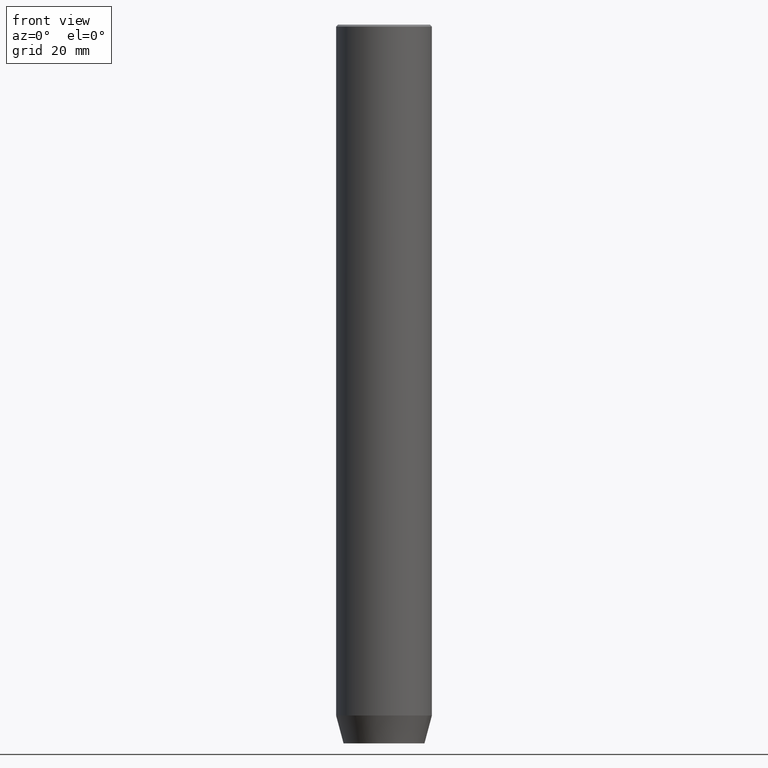
[diagram: clean part render]
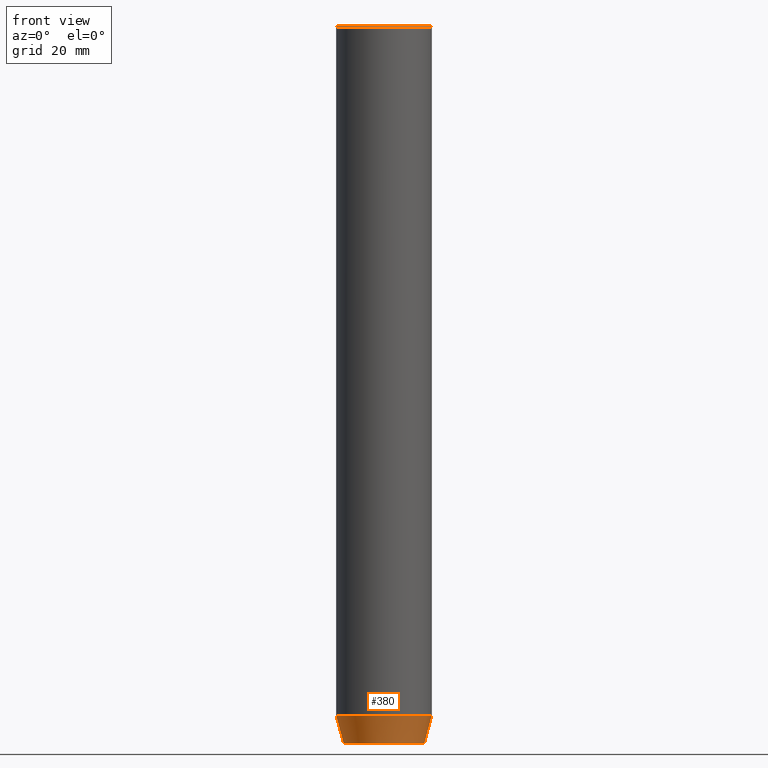
[diagram: same view with one face highlighted and labeled with its STEP entity id]
A machine part, front view. The second image highlights one B-rep face of the part: STEP entity #380.
In plain terms, the highlighted conical surface has half-angle 15 deg.
Its self-contained STEP definition (entity closure, byte-faithful):
#4 = EDGE_CURVE ( 'NONE', #230, #500, #580, .T. ) ;
#20 = VECTOR ( 'NONE', #286, 1000.000000000000000 ) ;
#22 = EDGE_CURVE ( 'NONE', #500, #363, #296, .T. ) ;
#32 = DIRECTION ( 'NONE',  ( -0.2588190451025213501, 3.169619151431772337E-17, 0.9659258262890680902 ) ) ;
#37 = CARTESIAN_POINT ( 'NONE',  ( -12.00000000000000000, 1.469576158976823947E-15, -173.0000000000000000 ) ) ;
#57 = CONICAL_SURFACE ( 'NONE', #338, 12.00000000000000000, 0.2617993877991500740 ) ;
#62 = ORIENTED_EDGE ( 'NONE', *, *, #208, .T. ) ;
#74 = DIRECTION ( 'NONE',  ( 1.000000000000000000, 0.000000000000000000, 0.000000000000000000 ) ) ;
#85 = CARTESIAN_POINT ( 'NONE',  ( -12.00000000000000000, 1.469576158976823947E-15, -173.0000000000000000 ) ) ;
#92 = EDGE_LOOP ( 'NONE', ( #180, #62, #539, #388 ) ) ;
#120 = DIRECTION ( 'NONE',  ( -0.000000000000000000, -0.000000000000000000, 1.000000000000000000 ) ) ;
#180 = ORIENTED_EDGE ( 'NONE', *, *, #4, .F. ) ;
#193 = AXIS2_PLACEMENT_3D ( 'NONE', #492, #120, #74 ) ;
#208 = EDGE_CURVE ( 'NONE', #230, #410, #498, .T. ) ;
#209 = CARTESIAN_POINT ( 'NONE',  ( -10.12435565298213547, 1.354726066681111050E-15, -180.0000000000000000 ) ) ;
#230 = VERTEX_POINT ( 'NONE', #209 ) ;
#239 = FACE_OUTER_BOUND ( 'NONE', #92, .T. ) ;
#251 = EDGE_CURVE ( 'NONE', #410, #363, #562, .T. ) ;
#277 = CARTESIAN_POINT ( 'NONE',  ( 12.00000000000000000, 0.000000000000000000, -173.0000000000000000 ) ) ;
#282 = CARTESIAN_POINT ( 'NONE',  ( 12.00000000000000000, 0.000000000000000000, -173.0000000000000000 ) ) ;
#285 = DIRECTION ( 'NONE',  ( 1.000000000000000000, 0.000000000000000000, 0.000000000000000000 ) ) ;
#286 = DIRECTION ( 'NONE',  ( 0.2588190451025213501, 0.000000000000000000, 0.9659258262890680902 ) ) ;
#296 = CIRCLE ( 'NONE', #193, 12.00000000000000000 ) ;
#338 = AXIS2_PLACEMENT_3D ( 'NONE', #423, #341, #521 ) ;
#341 = DIRECTION ( 'NONE',  ( -0.000000000000000000, -0.000000000000000000, 1.000000000000000000 ) ) ;
#360 = AXIS2_PLACEMENT_3D ( 'NONE', #367, #493, #285 ) ;
#363 = VERTEX_POINT ( 'NONE', #282 ) ;
#367 = CARTESIAN_POINT ( 'NONE',  ( 0.000000000000000000, 0.000000000000000000, -180.0000000000000000 ) ) ;
#380 = ADVANCED_FACE ( 'NONE', ( #239 ), #57, .T. ) ;
#388 = ORIENTED_EDGE ( 'NONE', *, *, #22, .F. ) ;
#410 = VERTEX_POINT ( 'NONE', #527 ) ;
#423 = CARTESIAN_POINT ( 'NONE',  ( 0.000000000000000000, 0.000000000000000000, -173.0000000000000000 ) ) ;
#492 = CARTESIAN_POINT ( 'NONE',  ( 0.000000000000000000, 0.000000000000000000, -173.0000000000000000 ) ) ;
#493 = DIRECTION ( 'NONE',  ( -0.000000000000000000, -0.000000000000000000, 1.000000000000000000 ) ) ;
#498 = CIRCLE ( 'NONE', #360, 10.12435565298213547 ) ;
#500 = VERTEX_POINT ( 'NONE', #37 ) ;
#521 = DIRECTION ( 'NONE',  ( 1.000000000000000000, 0.000000000000000000, 0.000000000000000000 ) ) ;
#527 = CARTESIAN_POINT ( 'NONE',  ( 10.12435565298213547, 0.000000000000000000, -180.0000000000000000 ) ) ;
#533 = VECTOR ( 'NONE', #32, 1000.000000000000000 ) ;
#539 = ORIENTED_EDGE ( 'NONE', *, *, #251, .T. ) ;
#562 = LINE ( 'NONE', #277, #20 ) ;
#580 = LINE ( 'NONE', #85, #533 ) ;